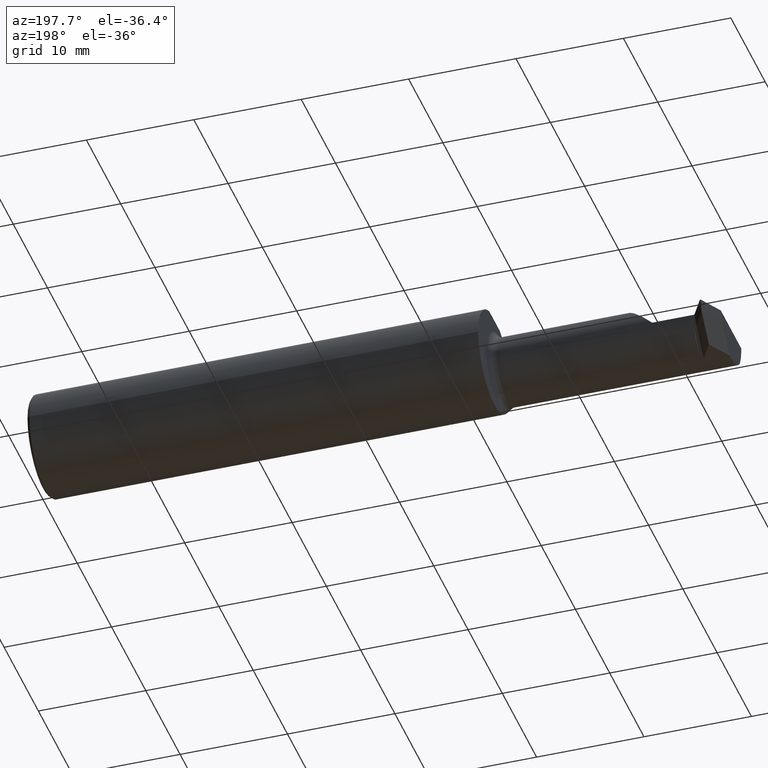
[diagram: clean part render]
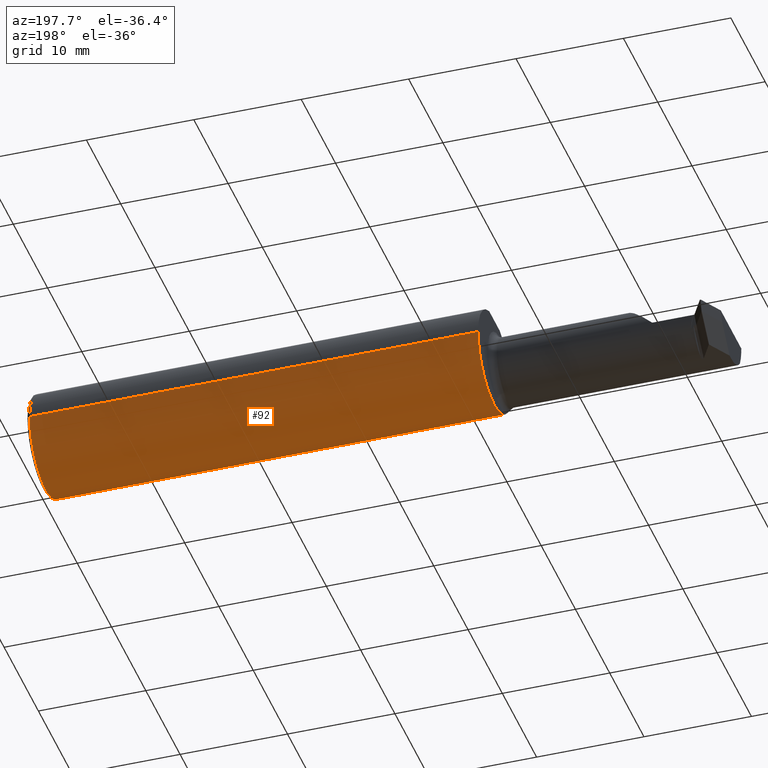
[diagram: same view with one face highlighted and labeled with its STEP entity id]
A machine part, auxiliary view. The second image highlights one B-rep face of the part: STEP entity #92.
In plain terms, the highlighted cylindrical surface (partial cylindrical patch) has radius 4.7587 mm, axis along (1, 0, -0).
Its self-contained STEP definition (entity closure, byte-faithful):
#6 = VECTOR ( 'NONE', #79, 39.37007874015748143 ) ;
#16 = CIRCLE ( 'NONE', #519, 0.1873499999999999888 ) ;
#21 = VECTOR ( 'NONE', #497, 39.37007874015748143 ) ;
#53 = DIRECTION ( 'NONE',  ( -1.000000000000000000, -1.224646799147319927E-16, 0.000000000000000000 ) ) ;
#73 = ORIENTED_EDGE ( 'NONE', *, *, #680, .F. ) ;
#78 = EDGE_CURVE ( 'NONE', #731, #850, #209, .T. ) ;
#79 = DIRECTION ( 'NONE',  ( 1.000000000000000000, 1.224646799147352961E-16, -0.000000000000000000 ) ) ;
#92 = ADVANCED_FACE ( 'NONE', ( #832 ), #168, .T. ) ;
#93 = CARTESIAN_POINT ( 'NONE',  ( -1.655422262237692843, -0.1340112273051909386, -0.1311235663431504217 ) ) ;
#94 = CARTESIAN_POINT ( 'NONE',  ( -0.009999999999999049580, -0.1873499999999995724, 2.294375778202565406E-17 ) ) ;
#99 = CARTESIAN_POINT ( 'NONE',  ( -1.661433375423614134, -0.1564664892255272222, -0.1032885322714726384 ) ) ;
#103 = CARTESIAN_POINT ( 'NONE',  ( -1.663468400737659003, -0.1602664485539584682, -0.09726338467661442555 ) ) ;
#133 = CARTESIAN_POINT ( 'NONE',  ( -2.500000000000000000, -0.1873499999999999055, 0.000000000000000000 ) ) ;
#149 = EDGE_CURVE ( 'NONE', #689, #311, #358, .T. ) ;
#167 = DIRECTION ( 'NONE',  ( 1.000000000000000000, 1.224646799147352961E-16, -0.000000000000000000 ) ) ;
#168 = CYLINDRICAL_SURFACE ( 'NONE', #478, 0.1873499999999999610 ) ;
#180 = DIRECTION ( 'NONE',  ( 1.000000000000000000, -7.807390513315893590E-17, 0.000000000000000000 ) ) ;
#183 = CIRCLE ( 'NONE', #818, 0.1873499999999999610 ) ;
#209 = B_SPLINE_CURVE_WITH_KNOTS ( 'NONE', 3,
 ( #246, #843, #781, #309, #634, #574, #304, #103, #99, #698, #437, #93, #518, #569 ),
 .UNSPECIFIED., .F., .F.,
 ( 4, 2, 2, 2, 2, 2, 4 ),
 ( 1.958244471939480462E-07, 0.0001405465607227700199, 0.0002808972969983460598, 0.0005615987695494991695, 0.001123001714651806473, 0.001684404659754113777, 0.002245807604856420864 ),
 .UNSPECIFIED. ) ;
#219 = LINE ( 'NONE', #363, #595 ) ;
#228 = EDGE_CURVE ( 'NONE', #678, #618, #343, .T. ) ;
#246 = CARTESIAN_POINT ( 'NONE',  ( -1.680000000000000160, -0.1707639599170690248, -0.07706940050007969611 ) ) ;
#259 = CARTESIAN_POINT ( 'NONE',  ( -1.655000000000000471, -0.1232518659295081948, -0.1410992560040430499 ) ) ;
#266 = EDGE_CURVE ( 'NONE', #850, #689, #866, .T. ) ;
#298 = DIRECTION ( 'NONE',  ( 0.000000000000000000, 1.000000000000000000, 0.000000000000000000 ) ) ;
#299 = EDGE_CURVE ( 'NONE', #311, #758, #183, .T. ) ;
#304 = CARTESIAN_POINT ( 'NONE',  ( -1.667677439423820074, -0.1652001307534588792, -0.08843250989739263879 ) ) ;
#306 = ORIENTED_EDGE ( 'NONE', *, *, #266, .T. ) ;
#309 = CARTESIAN_POINT ( 'NONE',  ( -1.673556805690880722, -0.1693764864286271543, -0.08008164902639378080 ) ) ;
#311 = VERTEX_POINT ( 'NONE', #821 ) ;
#316 = CARTESIAN_POINT ( 'NONE',  ( -2.500000000000000000, 6.123233995736767268E-17, 0.000000000000000000 ) ) ;
#343 = LINE ( 'NONE', #809, #6 ) ;
#353 = EDGE_CURVE ( 'NONE', #439, #731, #219, .T. ) ;
#358 = LINE ( 'NONE', #550, #21 ) ;
#363 = CARTESIAN_POINT ( 'NONE',  ( -2.039733339501604625, -0.1707639599170687750, -0.07706940050007952958 ) ) ;
#405 = VECTOR ( 'NONE', #794, 39.37007874015748143 ) ;
#422 = ORIENTED_EDGE ( 'NONE', *, *, #299, .T. ) ;
#431 = AXIS2_PLACEMENT_3D ( 'NONE', #538, #180, #594 ) ;
#437 = CARTESIAN_POINT ( 'NONE',  ( -1.657029206695645129, -0.1437271265854044855, -0.1203948162417852741 ) ) ;
#439 = VERTEX_POINT ( 'NONE', #458 ) ;
#453 = CARTESIAN_POINT ( 'NONE',  ( -2.500000000000000000, 6.123233995736767268E-17, 0.000000000000000000 ) ) ;
#457 = EDGE_CURVE ( 'NONE', #678, #439, #16, .T. ) ;
#458 = CARTESIAN_POINT ( 'NONE',  ( -2.500000000000000000, -0.1707639599170693301, -0.07706940050007840548 ) ) ;
#477 = ORIENTED_EDGE ( 'NONE', *, *, #353, .T. ) ;
#478 = AXIS2_PLACEMENT_3D ( 'NONE', #453, #709, #298 ) ;
#497 = DIRECTION ( 'NONE',  ( 1.000000000000000000, 1.224646799147352961E-16, -0.000000000000000000 ) ) ;
#518 = CARTESIAN_POINT ( 'NONE',  ( -1.655000000000000027, -0.1287560726697991043, -0.1362912664340399926 ) ) ;
#519 = AXIS2_PLACEMENT_3D ( 'NONE', #316, #167, #703 ) ;
#529 = LINE ( 'NONE', #791, #405 ) ;
#534 = CARTESIAN_POINT ( 'NONE',  ( -2.250000000000000000, -0.1873499999999998500, 0.000000000000000000 ) ) ;
#538 = CARTESIAN_POINT ( 'NONE',  ( -1.655000000000000249, 1.647149944853189991E-16, 0.000000000000000000 ) ) ;
#550 = CARTESIAN_POINT ( 'NONE',  ( -2.500000000000000000, 0.1873500000000000165, 0.000000000000000000 ) ) ;
#569 = CARTESIAN_POINT ( 'NONE',  ( -1.655000000000000471, -0.1232518659295081948, -0.1410992560040430499 ) ) ;
#574 = CARTESIAN_POINT ( 'NONE',  ( -1.669262760687379332, -0.1667342482336273413, -0.08549289042268734540 ) ) ;
#578 = CARTESIAN_POINT ( 'NONE',  ( -1.680000000000000160, -0.1707639599170690248, -0.07706940050007969611 ) ) ;
#594 = DIRECTION ( 'NONE',  ( 0.000000000000000000, -1.000000000000000000, 8.881784197001252323E-16 ) ) ;
#595 = VECTOR ( 'NONE', #744, 39.37007874015748143 ) ;
#618 = VERTEX_POINT ( 'NONE', #534 ) ;
#622 = EDGE_LOOP ( 'NONE', ( #73, #854, #644, #477, #667, #306, #845, #422 ) ) ;
#630 = DIRECTION ( 'NONE',  ( -1.253099476677462854E-16, 1.000000000000000000, 0.000000000000000000 ) ) ;
#634 = CARTESIAN_POINT ( 'NONE',  ( -1.672400974074067959, -0.1687571032453828446, -0.08138423029642639916 ) ) ;
#644 = ORIENTED_EDGE ( 'NONE', *, *, #457, .T. ) ;
#658 = CARTESIAN_POINT ( 'NONE',  ( -0.009999999999999073866, 3.661693929450587103E-16, 0.000000000000000000 ) ) ;
#667 = ORIENTED_EDGE ( 'NONE', *, *, #78, .T. ) ;
#678 = VERTEX_POINT ( 'NONE', #133 ) ;
#680 = EDGE_CURVE ( 'NONE', #618, #758, #529, .T. ) ;
#689 = VERTEX_POINT ( 'NONE', #797 ) ;
#698 = CARTESIAN_POINT ( 'NONE',  ( -1.658205059584735075, -0.1482131682563408992, -0.1148178553395536039 ) ) ;
#703 = DIRECTION ( 'NONE',  ( 0.000000000000000000, 1.000000000000000000, 0.000000000000000000 ) ) ;
#709 = DIRECTION ( 'NONE',  ( 1.000000000000000000, 1.224646799147352961E-16, -0.000000000000000000 ) ) ;
#731 = VERTEX_POINT ( 'NONE', #578 ) ;
#744 = DIRECTION ( 'NONE',  ( 1.000000000000000000, -7.807390513315893590E-17, 0.000000000000000000 ) ) ;
#758 = VERTEX_POINT ( 'NONE', #94 ) ;
#781 = CARTESIAN_POINT ( 'NONE',  ( -1.676405426802838994, -0.1703891633079887280, -0.07790377200686128545 ) ) ;
#791 = CARTESIAN_POINT ( 'NONE',  ( -2.500000000000000000, -0.1873499999999998777, 2.294375778202565406E-17 ) ) ;
#794 = DIRECTION ( 'NONE',  ( 1.000000000000000000, 1.224646799147352961E-16, -0.000000000000000000 ) ) ;
#797 = CARTESIAN_POINT ( 'NONE',  ( -1.655000000000000249, 0.1873500000000001275, 0.000000000000000000 ) ) ;
#809 = CARTESIAN_POINT ( 'NONE',  ( -2.500000000000000000, -0.1873499999999998777, 0.000000000000000000 ) ) ;
#818 = AXIS2_PLACEMENT_3D ( 'NONE', #658, #53, #630 ) ;
#821 = CARTESIAN_POINT ( 'NONE',  ( -0.009999999999999096417, 0.1873500000000003218, 0.000000000000000000 ) ) ;
#832 = FACE_OUTER_BOUND ( 'NONE', #622, .T. ) ;
#843 = CARTESIAN_POINT ( 'NONE',  ( -1.678119110118878821, -0.1707639599170683031, -0.07706940050008065368 ) ) ;
#845 = ORIENTED_EDGE ( 'NONE', *, *, #149, .T. ) ;
#850 = VERTEX_POINT ( 'NONE', #259 ) ;
#854 = ORIENTED_EDGE ( 'NONE', *, *, #228, .F. ) ;
#866 = CIRCLE ( 'NONE', #431, 0.1873499999999999610 ) ;